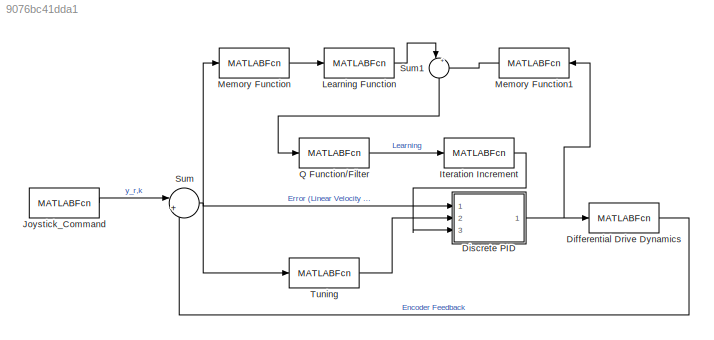
MODEL slx_9076bc41dda1
KIND model
CONFIG AbsTol = auto
CONFIG FixedStep = auto
CONFIG MaxStep = auto
CONFIG MinStep = auto
CONFIG RelTol = 1e-3
CONFIG SampleTimeConstraint = Unconstrained
CONFIG Solver = VariableStepAuto
CONFIG SolverMode = Auto
CONFIG SolverName = VariableStepAuto
CONFIG StartTime = 0.0
CONFIG StopTime = 10.0
BLOCK [MATLABFcn] Differential Drive Dynamics
  MATLABFcn = sim_dynamics(u)
  Ports = [1, 1]
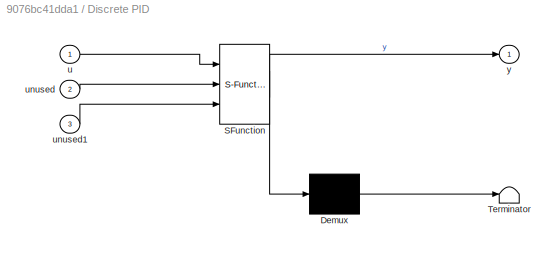
BLOCK [SubSystem] Discrete PID
  ErrorFcn = Stateflow.Translate.translate
  PermitHierarchicalResolution = ExplicitOnly
  Ports = [3, 1]
  RequestExecContextInheritance = off
  SFBlockType = MATLAB Function
  TreatAsAtomicUnit = on
  Variant = off
BLOCK [Demux] Discrete PID/ Demux 
  Outputs = 1
  Ports = [1, 1]
BLOCK [S-Function] Discrete PID/ SFunction 
  EnableBusSupport = on
  FunctionName = sf_sfun
  PortCounts = [3 2]
  Ports = [3, 2]
  SFunctionDeploymentMode = off
  Tag = Stateflow S-Function ILC_Model 5
BLOCK [Terminator] Discrete PID/ Terminator 
BLOCK [Inport] Discrete PID/u
  IconDisplay = Port number
BLOCK [Inport] Discrete PID/unused
  IconDisplay = Port number
  Port = 2
BLOCK [Inport] Discrete PID/unused1
  IconDisplay = Port number
  Port = 3
BLOCK [Outport] Discrete PID/y
  IconDisplay = Port number
BLOCK [MATLABFcn] Iteration Increment
  MATLABFcn = inc(u)
  Ports = [1, 1]
BLOCK [MATLABFcn] Joystick_Command
  MATLABFcn = joy_cmd(u)
  Ports = [1, 1]
BLOCK [MATLABFcn] Learning Function
  MATLABFcn = lrn_fun(u)
  Ports = [1, 1]
BLOCK [MATLABFcn] Memory Function
  MATLABFcn = mem(u)
  Ports = [1, 1]
BLOCK [MATLABFcn] Memory Function1
  MATLABFcn = mem(u)
  Ports = [1, 1]
BLOCK [MATLABFcn] Q Function//Filter
  MATLABFcn = qfil(u)
  Ports = [1, 1]
BLOCK [Sum] Sum
  IconShape = round
  InputSameDT = off
  Inputs = |+-
  OutDataTypeStr = Inherit: Inherit via internal rule
  Ports = [2, 1]
  SaturateOnIntegerOverflow = off
BLOCK [Sum] Sum1
  IconShape = round
  InputSameDT = off
  Inputs = |++
  OutDataTypeStr = Inherit: Inherit via internal rule
  Ports = [2, 1]
  SaturateOnIntegerOverflow = off
BLOCK [MATLABFcn] Tuning
  MATLABFcn = tun(u)
  Ports = [1, 1]
LINE Differential Drive Dynamics:1 -> Sum:2
NET Discrete PID:1 -> Differential Drive Dynamics:1, Memory Function1:1
LINE Iteration Increment:1 -> Discrete PID:3
LINE Joystick_Command:1 -> Sum:1
LINE Learning Function:1 -> Sum1:1
LINE Memory Function1:1 -> Sum1:2
LINE Memory Function:1 -> Learning Function:1
LINE Q Function//Filter:1 -> Iteration Increment:1
LINE Sum1:1 -> Q Function//Filter:1
NET Sum:1 -> Discrete PID:1, Memory Function:1, Tuning:1
LINE Tuning:1 -> Discrete PID:2
note: NET lines group one-source signal fan-out (src -> all destinations, sorted); 1:1 wires keep LINE
CHART Discrete PID states=1 transitions=1
  STATE_LABEL 'eML_blk_kernel()'
  STATE_LABEL 'SCRIPT:\nfunction y = disc_pid(u,~,~)\n% This is the PID Discrete Function.\n\n% Inputs:Reference Signal (u), Tuning Function (t_u) and Learning Function\n% (l_u)\n% Outputs: Controlled Signal to Differential Drive,\n\n% Model: u(j,k) = u(j, k-1) + E(j,k)*l(j,k)\n%       E(j,k) => 2x6 matrix \nt_u = 1;\nl_u = 1;\ny = u + t_u + l_u; % Summation of all three signals'
